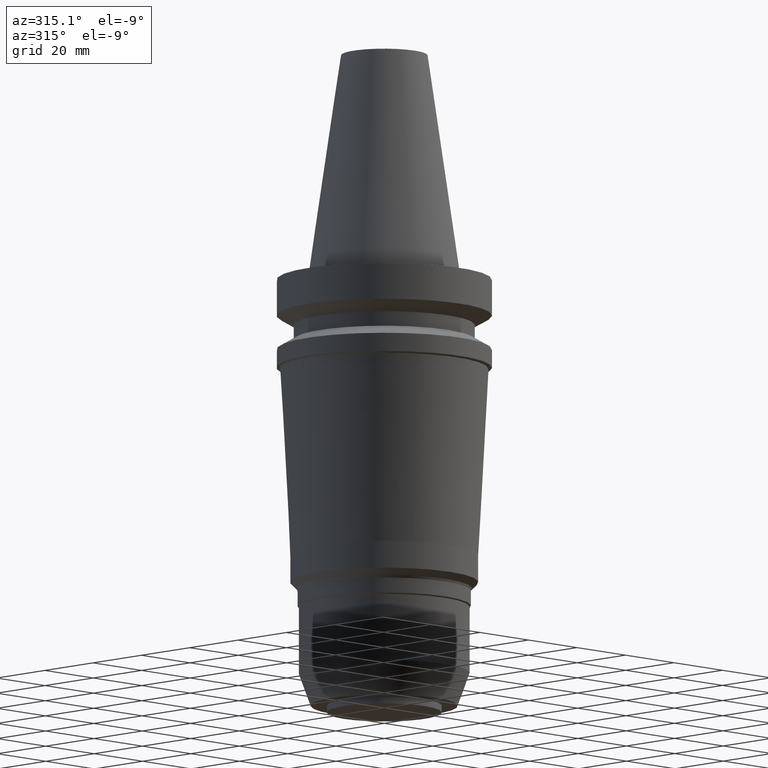
[diagram: clean part render]
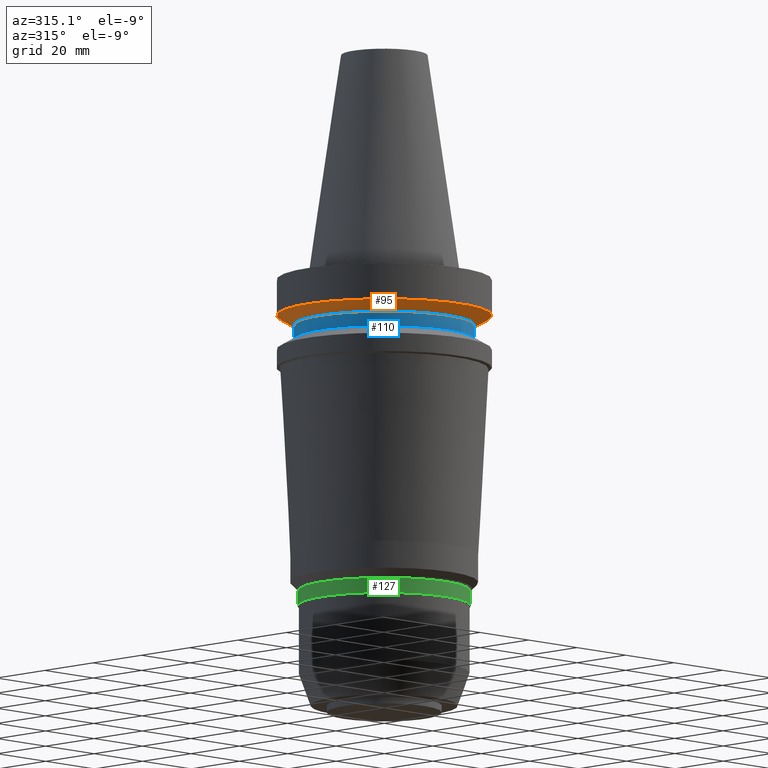
[diagram: same view with three faces highlighted in distinct colors, each labeled with its STEP entity id]
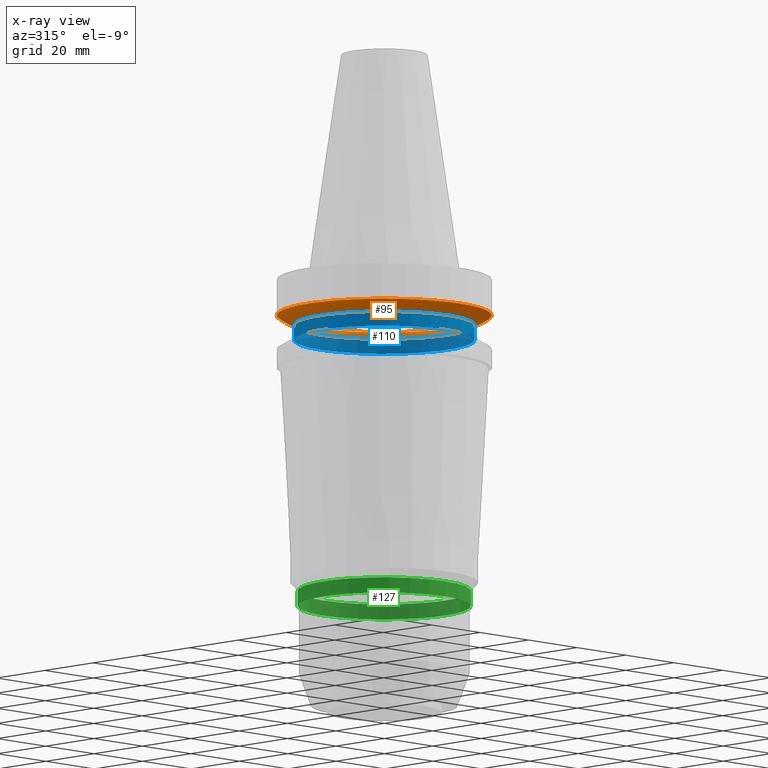
[diagram: x-ray of the same camera — body ghosted, the three highlighted faces saturated]
A machine part, auxiliary view with three faces highlighted in distinct colors.
The next image is the same camera in x-ray (body ghosted, the three faces saturated) — at least one of them is partly hidden behind the body in this view.
Their STEP definitions:

[orange] entity #95 — the highlighted conical surface has half-angle 60 deg.
#95=ADVANCED_FACE('Unnamed[1]',(#235,#236),#237,.T.);
#173=EDGE_CURVE('Unnamed[1]',#360,#360,#361,.T.);
#177=EDGE_CURVE('Unnamed[1]',#366,#366,#367,.T.);
#235=FACE_BOUND('',#425,.T.);
#236=FACE_BOUND('',#426,.T.);
#237=CONICAL_SURFACE('',#427,28.9999999999999,1.04719755119657);
#360=VERTEX_POINT('',#581);
#361=CIRCLE('',#582,26.4999999999994);
#366=VERTEX_POINT('',#589);
#367=CIRCLE('',#590,31.5000000000003);
#425=EDGE_LOOP('',(#635));
#426=EDGE_LOOP('',(#636));
#427=AXIS2_PLACEMENT_3D('',#637,#638,#639);
#581=CARTESIAN_POINT('',(8.8494551369045E-016,26.4999999999995,-14.4522569986152));
#582=AXIS2_PLACEMENT_3D('',#777,#778,#779);
#589=CARTESIAN_POINT('',(7.08182973902924E-016,31.5000000000004,-11.5655056526664));
#590=AXIS2_PLACEMENT_3D('',#783,#784,#785);
#635=ORIENTED_EDGE('',*,*,#173,.F.);
#636=ORIENTED_EDGE('',*,*,#177,.T.);
#637=CARTESIAN_POINT('',(7.96564243796687E-016,7.1266985297152E-014,-13.0088813256408));
#638=DIRECTION('',(-6.12323399573677E-017,7.43161200358282E-017,1.0));
#639=DIRECTION('',(-2.766028044223E-034,1.0,-7.43161200358281E-017));
#777=CARTESIAN_POINT('',(8.84945513690451E-016,7.11597192173824E-014,-14.4522569986152));
#778=DIRECTION('',(6.12323399573677E-017,-7.43161200358211E-017,-1.0));
#779=DIRECTION('',(-2.76602804423239E-034,1.0,-7.43161200358211E-017));
#783=CARTESIAN_POINT('',(7.08182973902924E-016,7.13742513769216E-014,-11.5655056526664));
#784=DIRECTION('',(6.12323399573677E-017,-7.43161200358341E-017,-1.0));
#785=DIRECTION('',(-2.76602804421511E-034,1.0,-7.43161200358341E-017));

[blue] entity #110 — the highlighted cylindrical surface (bore or boss wall) has radius 26.5 mm, axis along (0, -0, -1).
#110=ADVANCED_FACE('Unnamed[1]',(#259,#260),#261,.T.);
#119=EDGE_CURVE('Unnamed[1]',#274,#274,#275,.T.);
#173=EDGE_CURVE('Unnamed[1]',#360,#360,#361,.T.);
#259=FACE_BOUND('',#455,.T.);
#260=FACE_BOUND('',#456,.T.);
#261=CYLINDRICAL_SURFACE('',#457,26.4999999999997);
#274=VERTEX_POINT('',#474);
#275=CIRCLE('',#475,26.5);
#360=VERTEX_POINT('',#581);
#361=CIRCLE('',#582,26.4999999999994);
#455=EDGE_LOOP('',(#662));
#456=EDGE_LOOP('',(#663));
#457=AXIS2_PLACEMENT_3D('',#664,#665,#666);
#474=CARTESIAN_POINT('',(1.1479681728942E-015,26.5,-18.7477430013855));
#475=AXIS2_PLACEMENT_3D('',#679,#680,#681);
#581=CARTESIAN_POINT('',(8.8494551369045E-016,26.4999999999995,-14.4522569986152));
#582=AXIS2_PLACEMENT_3D('',#777,#778,#779);
#662=ORIENTED_EDGE('',*,*,#119,.F.);
#663=ORIENTED_EDGE('',*,*,#173,.T.);
#664=CARTESIAN_POINT('',(1.01645684329232E-015,7.10001072906852E-014,-16.6000000000003));
#665=DIRECTION('',(6.12323399573677E-017,-7.43161200358203E-017,-1.0));
#666=DIRECTION('',(-2.76602804423236E-034,1.0,-7.43161200358203E-017));
#679=CARTESIAN_POINT('',(1.1479681728942E-015,7.08404953639881E-014,-18.7477430013855));
#680=DIRECTION('',(6.12323399573677E-017,-7.43161200358195E-017,-1.0));
#681=DIRECTION('',(-2.76602804423233E-034,1.0,-7.43161200358195E-017));
#777=CARTESIAN_POINT('',(8.84945513690451E-016,7.11597192173824E-014,-14.4522569986152));
#778=DIRECTION('',(6.12323399573677E-017,-7.43161200358211E-017,-1.0));
#779=DIRECTION('',(-2.76602804423239E-034,1.0,-7.43161200358211E-017));

[green] entity #127 — the highlighted cylindrical surface (bore or boss wall) has radius 25.35 mm, axis along (0, -0, -1).
#97=EDGE_CURVE('Unnamed[1]',#239,#239,#240,.T.);
#127=ADVANCED_FACE('Unnamed[1]',(#286,#287),#288,.T.);
#136=EDGE_CURVE('Unnamed[1]',#301,#301,#302,.T.);
#239=VERTEX_POINT('',#430);
#240=CIRCLE('',#431,25.3499999999998);
#286=FACE_BOUND('',#489,.T.);
#287=FACE_BOUND('',#490,.T.);
#288=CYLINDRICAL_SURFACE('',#491,25.3499999999998);
#301=VERTEX_POINT('',#508);
#302=CIRCLE('',#509,25.3499999999997);
#430=CARTESIAN_POINT('',(5.97013338275484E-015,25.3499999999999,-97.4996772442713));
#431=AXIS2_PLACEMENT_3D('',#640,#641,#642);
#489=EDGE_LOOP('',(#692));
#490=EDGE_LOOP('',(#693));
#491=AXIS2_PLACEMENT_3D('',#694,#695,#696);
#508=CARTESIAN_POINT('',(5.69851979962778E-015,25.3499999999998,-93.0638908066442));
#509=AXIS2_PLACEMENT_3D('',#709,#710,#711);
#640=CARTESIAN_POINT('',(5.97013338275484E-015,6.49879571657378E-014,-97.4996772442713));
#641=DIRECTION('',(6.12323399573677E-017,-7.43161200358257E-017,-1.0));
#642=DIRECTION('',(-2.76602804412688E-034,1.0,-7.43161200358257E-017));
#692=ORIENTED_EDGE('',*,*,#97,.F.);
#693=ORIENTED_EDGE('',*,*,#136,.T.);
#694=CARTESIAN_POINT('',(5.83432659119131E-015,6.51527823844138E-014,-95.2817840254577));
#695=DIRECTION('',(6.12323399573676E-017,-7.43161200358258E-017,-1.0));
#696=DIRECTION('',(-2.7660280442684E-034,1.0,-7.43161200358258E-017));
#709=CARTESIAN_POINT('',(5.69851979962778E-015,6.53176076030899E-014,-93.0638908066442));
#710=DIRECTION('',(6.12323399573677E-017,-7.43161200358259E-017,-1.0));
#711=DIRECTION('',(-2.76602804412689E-034,1.0,-7.43161200358259E-017));